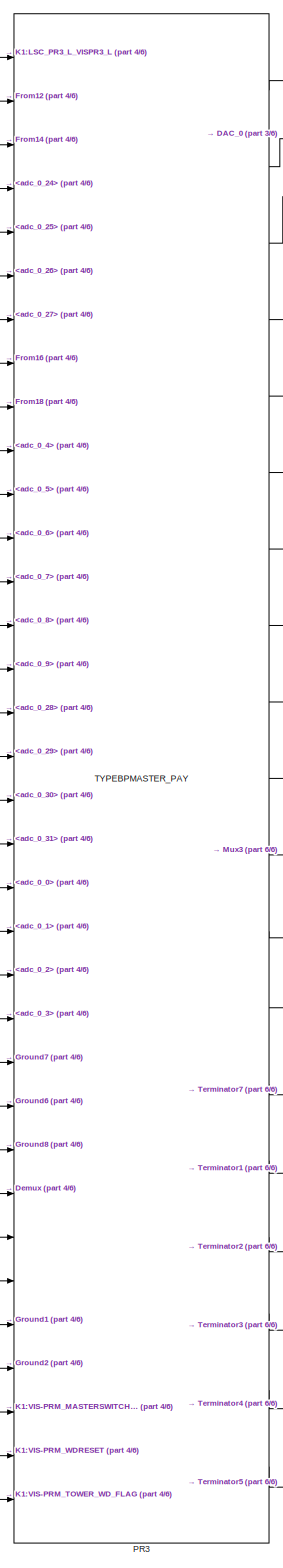
[diagram: root canvas - part 1/6, left side, full height]
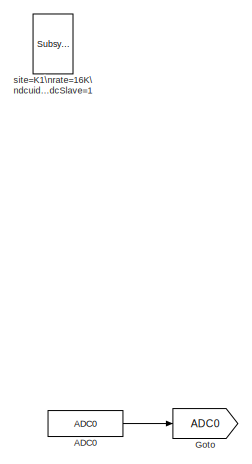
[diagram: root canvas - part 2/6, top left region]
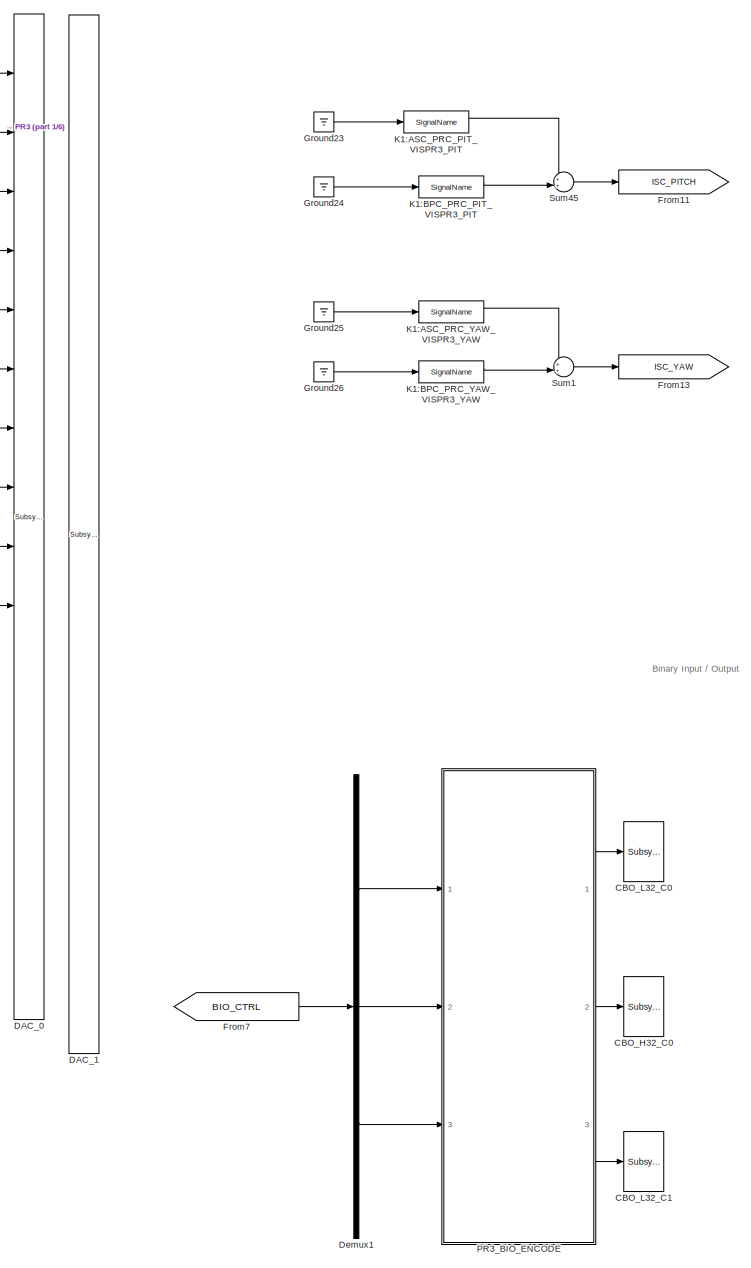
[diagram: root canvas - part 3/6, center side, full height]
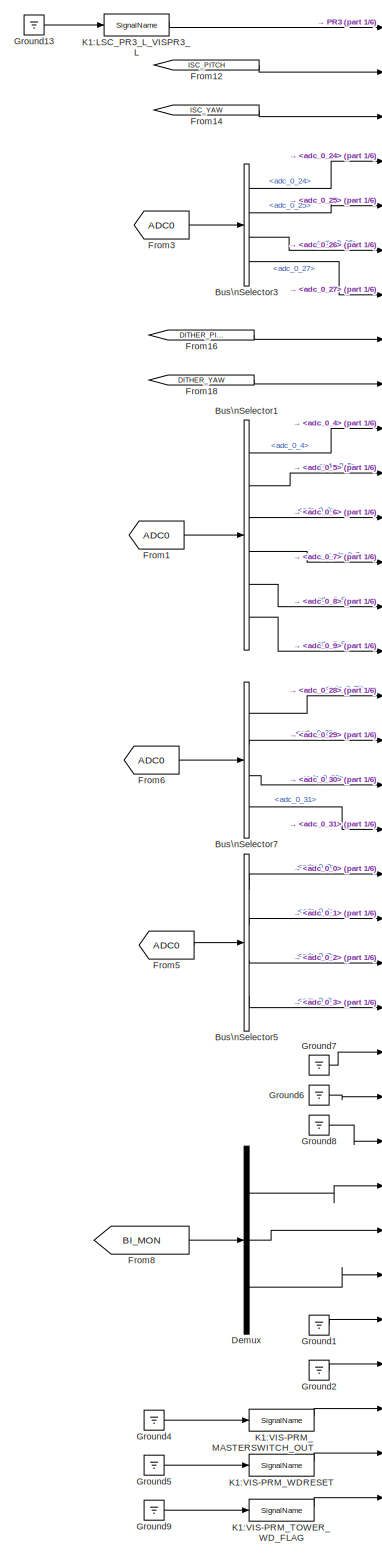
[diagram: root canvas - part 4/6, left side, full height]
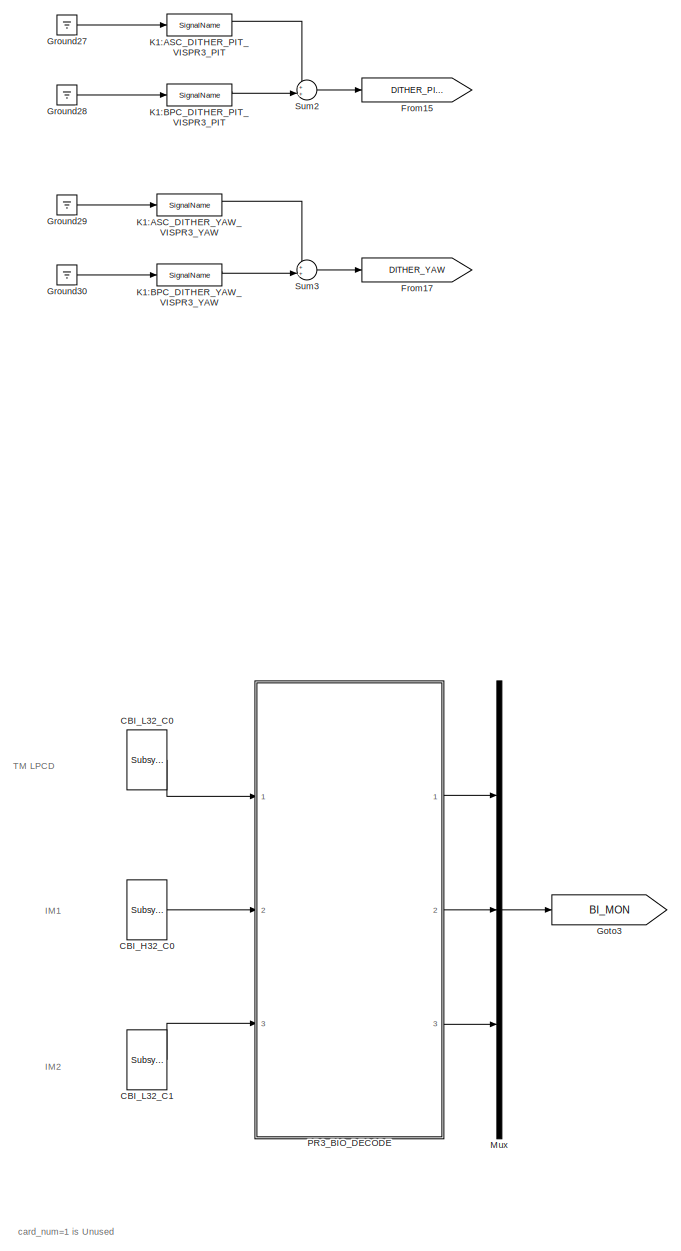
[diagram: root canvas - part 5/6, right side, full height]
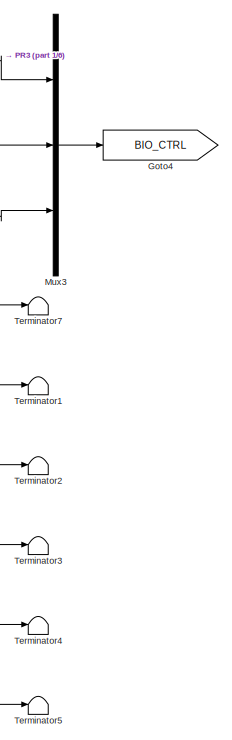
[diagram: root canvas - part 6/6, bottom center region]
MODEL k1vispr3p
KIND model
BLOCK [Reference] ADC0  REF=cdsAdcx0/ADC0
  AttributesFormatString = %<Description>\\n%<Tag>
  Description = type-GSC_16AI64SSA\ncard_num=0
  Ports = [0, 1]
  SID = 271
  SourceBlock = cdsAdcx0/ADC0
  SourceType = SubSystem
  Tag = cdsAdc
BLOCK [BusSelector] Bus\nSelector1
  AttributesFormatString = %<Description>
  Description = ADC Selector
  OutputSignals = adc_0_4,adc_0_5,adc_0_6,adc_0_7,adc_0_8,adc_0_9
  Ports = [1, 6]
  SID = 392
BLOCK [BusSelector] Bus\nSelector3
  AttributesFormatString = %<Description>
  Description = ADC Selector
  OutputSignals = adc_0_24,adc_0_25,adc_0_26,adc_0_27
  Ports = [1, 4]
  SID = 652
BLOCK [BusSelector] Bus\nSelector5
  AttributesFormatString = %<Description>
  Description = ADC Selector
  OutputSignals = adc_0_0,adc_0_1,adc_0_2,adc_0_3
  Ports = [1, 4]
  SID = 650
BLOCK [BusSelector] Bus\nSelector7
  AttributesFormatString = %<Description>
  Description = ADC Selector
  OutputSignals = adc_0_28,adc_0_29,adc_0_30,adc_0_31
  Ports = [1, 4]
  SID = 495
BLOCK [Reference] CBI_H32_C0  REF=cdsCDI64/Subsystem
  AttributesFormatString = %<Tag>\\n%<Description>
  Description = card_num=1
  Ports = [0, 1]
  SID = 996
  SourceBlock = cdsCDI64/Subsystem
  SourceType = SubSystem
  Tag = cdsCDI64
BLOCK [Reference] CBI_L32_C0  REF=cdsCDI64/Subsystem
  AttributesFormatString = %<Tag>\\n%<Description>
  Description = card_num=0
  Ports = [0, 1]
  SID = 1014
  SourceBlock = cdsCDI64/Subsystem
  SourceType = SubSystem
  Tag = cdsCDI64
BLOCK [Reference] CBI_L32_C1  REF=cdsCDI64/Subsystem
  AttributesFormatString = %<Tag>\\n%<Description>
  Description = card_num=2
  Ports = [0, 1]
  SID = 1001
  SourceBlock = cdsCDI64/Subsystem
  SourceType = SubSystem
  Tag = cdsCDI64
BLOCK [Reference] CBO_H32_C0  REF=cdsCDO64/Subsystem
  AttributesFormatString = %<Tag>\\n%<Description>
  Description = card_num=1
  Ports = [1]
  SID = 994
  SourceBlock = cdsCDO64/Subsystem
  SourceType = SubSystem
  Tag = cdsCDO64
BLOCK [Reference] CBO_L32_C0  REF=cdsCDO64/Subsystem
  AttributesFormatString = %<Tag>\\n%<Description>
  Description = card_num=0
  Ports = [1]
  SID = 1013
  SourceBlock = cdsCDO64/Subsystem
  SourceType = SubSystem
  Tag = cdsCDO64
BLOCK [Reference] CBO_L32_C1  REF=cdsCDO64/Subsystem
  AttributesFormatString = %<Tag>\\n%<Description>
  Description = card_num=2
  Ports = [1]
  SID = 999
  SourceBlock = cdsCDO64/Subsystem
  SourceType = SubSystem
  Tag = cdsCDO64
BLOCK [Reference] DAC_0  REF=dac/Subsystem  (lib defined in slx_40ef132df75b, slx_b7657ccccc5b, +4 more)
  AttributesFormatString = %<Description>
  Description = type=GSC_16AO16,\ncard_num=0
  Ports = [16]
  SID = 378
  SourceBlock = dac/Subsystem
  SourceType = SubSystem
BLOCK [Reference] DAC_1  REF=dac/Subsystem  (lib defined in slx_40ef132df75b, slx_b7657ccccc5b, +4 more)
  AttributesFormatString = %<Description>
  Description = type=GSC_16AO16,\ncard_num=1
  Ports = [16]
  SID = 637
  SourceBlock = dac/Subsystem
  SourceType = SubSystem
BLOCK [Demux] Demux
  DisplayOption = bar
  Outputs = 3
  Ports = [1, 3]
  SID = 971
BLOCK [Demux] Demux1
  DisplayOption = bar
  Outputs = 3
  Ports = [1, 3]
  SID = 906
BLOCK [From] From1
  GotoTag = ADC0
  SID = 398
BLOCK [Goto] From11
  GotoTag = ISC_PITCH
  SID = 1047
BLOCK [From] From12
  GotoTag = ISC_PITCH
  SID = 1076
BLOCK [Goto] From13
  GotoTag = ISC_YAW
  SID = 1048
BLOCK [From] From14
  GotoTag = ISC_YAW
  SID = 1077
BLOCK [Goto] From15
  GotoTag = DITHER_PITCH
  SID = 1049
BLOCK [From] From16
  GotoTag = DITHER_PITCH
  SID = 1078
BLOCK [Goto] From17
  GotoTag = DITHER_YAW
  SID = 1050
BLOCK [From] From18
  GotoTag = DITHER_YAW
  SID = 1079
BLOCK [From] From3
  GotoTag = ADC0
  SID = 653
BLOCK [From] From5
  GotoTag = ADC0
  SID = 651
BLOCK [From] From6
  GotoTag = ADC0
  SID = 494
BLOCK [From] From7
  GotoTag = BIO_CTRL
  SID = 907
BLOCK [From] From8
  GotoTag = BI_MON
  SID = 972
BLOCK [Goto] Goto
  GotoTag = ADC0
  SID = 396
BLOCK [Goto] Goto3
  GotoTag = BI_MON
  SID = 908
BLOCK [Goto] Goto4
  GotoTag = BIO_CTRL
  SID = 993
BLOCK [Ground] Ground1
  SID = 1080
BLOCK [Ground] Ground13
  SID = 1046
BLOCK [Ground] Ground2
  SID = 1081
BLOCK [Ground] Ground23
  SID = 1051
BLOCK [Ground] Ground24
  SID = 1052
BLOCK [Ground] Ground25
  SID = 1053
BLOCK [Ground] Ground26
  SID = 1054
BLOCK [Ground] Ground27
  SID = 1055
BLOCK [Ground] Ground28
  SID = 1056
BLOCK [Ground] Ground29
  SID = 1057
BLOCK [Ground] Ground30
  SID = 1058
BLOCK [Ground] Ground4
  SID = 1083
BLOCK [Ground] Ground5
  SID = 1084
BLOCK [Ground] Ground6
  SID = 973
BLOCK [Ground] Ground7
  SID = 974
BLOCK [Ground] Ground8
  SID = 975
BLOCK [Ground] Ground9
  SID = 1085
BLOCK [Reference] K1:ASC_DITHER_PIT_VISPR3_PIT  REF=cdsIPCx/SignalName
  AttributesFormatString = %<Tag>
  Description = Inter-Process Communication via PCI Express network.
  Ports = [1, 2]
  SID = 1074
  SourceBlock = cdsIPCx/SignalName
  SourceType = SubSystem
  Tag = cdsIPCx_PCIE
BLOCK [Reference] K1:ASC_DITHER_YAW_VISPR3_YAW  REF=cdsIPCx/SignalName
  AttributesFormatString = %<Tag>
  Description = Inter-Process Communication via PCI Express network.
  Ports = [1, 2]
  SID = 1075
  SourceBlock = cdsIPCx/SignalName
  SourceType = SubSystem
  Tag = cdsIPCx_PCIE
BLOCK [Reference] K1:ASC_PRC_PIT_VISPR3_PIT  REF=cdsIPCx/SignalName
  AttributesFormatString = %<Tag>
  Description = Inter-Process Communication via PCI Express network.
  Ports = [1, 2]
  SID = 1072
  SourceBlock = cdsIPCx/SignalName
  SourceType = SubSystem
  Tag = cdsIPCx_PCIE
BLOCK [Reference] K1:ASC_PRC_YAW_VISPR3_YAW  REF=cdsIPCx/SignalName
  AttributesFormatString = %<Tag>
  Description = Inter-Process Communication via PCI Express network.
  Ports = [1, 2]
  SID = 1073
  SourceBlock = cdsIPCx/SignalName
  SourceType = SubSystem
  Tag = cdsIPCx_PCIE
BLOCK [Reference] K1:BPC_DITHER_PIT_VISPR3_PIT  REF=cdsIPCx/SignalName
  AttributesFormatString = %<Tag>
  Description = Inter-Process Communication via PCI Express network.
  Ports = [1, 2]
  SID = 1063
  SourceBlock = cdsIPCx/SignalName
  SourceType = SubSystem
  Tag = cdsIPCx_PCIE
BLOCK [Reference] K1:BPC_DITHER_YAW_VISPR3_YAW  REF=cdsIPCx/SignalName
  AttributesFormatString = %<Tag>
  Description = Inter-Process Communication via PCI Express network.
  Ports = [1, 2]
  SID = 1064
  SourceBlock = cdsIPCx/SignalName
  SourceType = SubSystem
  Tag = cdsIPCx_PCIE
BLOCK [Reference] K1:BPC_PRC_PIT_VISPR3_PIT  REF=cdsIPCx/SignalName
  AttributesFormatString = %<Tag>
  Description = Inter-Process Communication via PCI Express network.
  Ports = [1, 2]
  SID = 1065
  SourceBlock = cdsIPCx/SignalName
  SourceType = SubSystem
  Tag = cdsIPCx_PCIE
BLOCK [Reference] K1:BPC_PRC_YAW_VISPR3_YAW  REF=cdsIPCx/SignalName
  AttributesFormatString = %<Tag>
  Description = Inter-Process Communication via PCI Express network.
  Ports = [1, 2]
  SID = 1066
  SourceBlock = cdsIPCx/SignalName
  SourceType = SubSystem
  Tag = cdsIPCx_PCIE
BLOCK [Reference] K1:LSC_PR3_L_VISPR3_L  REF=cdsIPCx/SignalName
  AttributesFormatString = %<Tag>
  Description = Inter-Process Communication via PCI Express network.
  Ports = [1, 2]
  SID = 1045
  SourceBlock = cdsIPCx/SignalName
  SourceType = SubSystem
  Tag = cdsIPCx_PCIE
BLOCK [Reference] K1:VIS-PRM_MASTERSWITCH_OUT  REF=cdsIPCx/SignalName
  AttributesFormatString = %<Tag>
  Description = Inter-Process Communication via Shared memory.
  Ports = [1, 2]
  SID = 1086
  SourceBlock = cdsIPCx/SignalName
  SourceType = SubSystem
  Tag = cdsIPCx_SHMEM
BLOCK [Reference] K1:VIS-PRM_TOWER_WD_FLAG  REF=cdsIPCx/SignalName
  AttributesFormatString = %<Tag>
  Description = Inter-Process Communication via Shared memory.
  Ports = [1, 2]
  SID = 1087
  SourceBlock = cdsIPCx/SignalName
  SourceType = SubSystem
  Tag = cdsIPCx_SHMEM
BLOCK [Reference] K1:VIS-PRM_WDRESET  REF=cdsIPCx/SignalName
  AttributesFormatString = %<Tag>
  Description = Inter-Process Communication via Shared memory.
  Ports = [1, 2]
  SID = 1088
  SourceBlock = cdsIPCx/SignalName
  SourceType = SubSystem
  Tag = cdsIPCx_SHMEM
BLOCK [Mux] Mux
  DisplayOption = bar
  Inputs = 3
  Ports = [3, 1]
  SID = 909
BLOCK [Mux] Mux3
  DisplayOption = bar
  Inputs = 3
  Ports = [3, 1]
  SID = 992
BLOCK [Reference] PR3  REF=TYPEBP_MASTER/TYPEBPMASTER_PAY
  AttributesFormatString = %<Description>
  Description = TYPEBP MASTER
  Ports = [34, 19]
  SID = 1082
  SourceBlock = TYPEBP_MASTER/TYPEBPMASTER_PAY
  SourceType = SubSystem
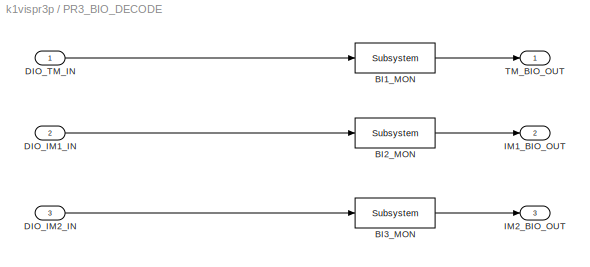
BLOCK [SubSystem] PR3_BIO_DECODE
  Ports = [3, 3]
  RequestExecContextInheritance = off
  SID = 654
  Variant = off
BLOCK [Reference] PR3_BIO_DECODE/BI1_MON  REF=cdsEpicsOut/Subsystem
  AttributesFormatString = %<Tag>
  Description = Purpose:                                          \nOutput a FE signal to an EPICS channel.           \n                                                  \nOperation:                                        \nTakes input value and passes it to EPICS record.  \n                                                  \nUsage:                                            \nName the part with the desired EPICS...<+14ch>  <repeated x6 — deduplicated; at blocks: BI1_MON, BI2_MON, BI3_MON, DIO_0_OUT, DIO_1_OUT, DIO_2_OUT>
  Ports = [1, 1]
  SID = 660
  SourceBlock = cdsEpicsOut/Subsystem
  SourceType = SubSystem
  Tag = cdsEpicsOutput
BLOCK [Reference] PR3_BIO_DECODE/BI2_MON  REF=cdsEpicsOut/Subsystem
  AttributesFormatString = %<Tag>
  Ports = [1, 1]
  SID = 661
  SourceBlock = cdsEpicsOut/Subsystem
  SourceType = SubSystem
  Tag = cdsEpicsOutput
BLOCK [Reference] PR3_BIO_DECODE/BI3_MON  REF=cdsEpicsOut/Subsystem
  AttributesFormatString = %<Tag>
  Ports = [1, 1]
  SID = 662
  SourceBlock = cdsEpicsOut/Subsystem
  SourceType = SubSystem
  Tag = cdsEpicsOutput
BLOCK [Inport] PR3_BIO_DECODE/DIO_IM1_IN
  IconDisplay = Port number
  Port = 2
  SID = 656
BLOCK [Inport] PR3_BIO_DECODE/DIO_IM2_IN
  IconDisplay = Port number
  Port = 3
  SID = 657
BLOCK [Inport] PR3_BIO_DECODE/DIO_TM_IN
  IconDisplay = Port number
  SID = 655
BLOCK [Outport] PR3_BIO_DECODE/IM1_BIO_OUT
  IconDisplay = Port number
  Port = 2
  SID = 666
BLOCK [Outport] PR3_BIO_DECODE/IM2_BIO_OUT
  IconDisplay = Port number
  Port = 3
  SID = 667
BLOCK [Outport] PR3_BIO_DECODE/TM_BIO_OUT
  IconDisplay = Port number
  SID = 665
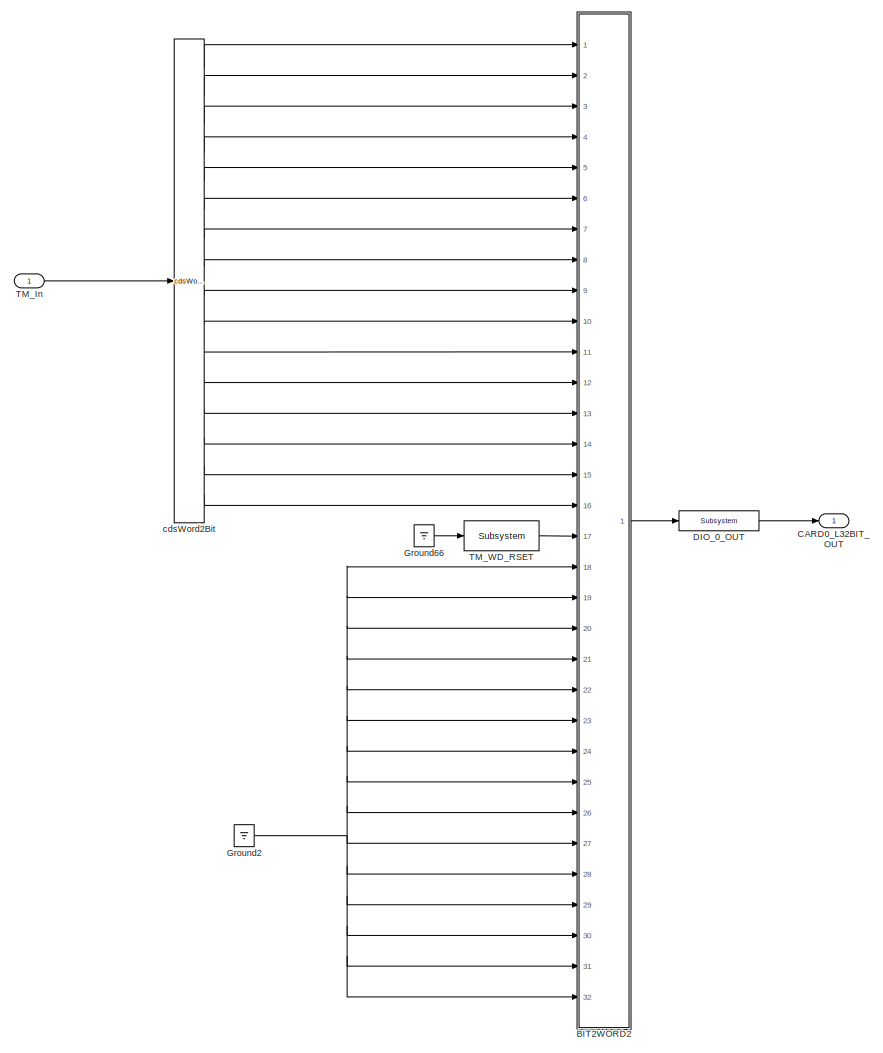
[diagram: PR3_BIO_ENCODE - part 1/3, top left region]
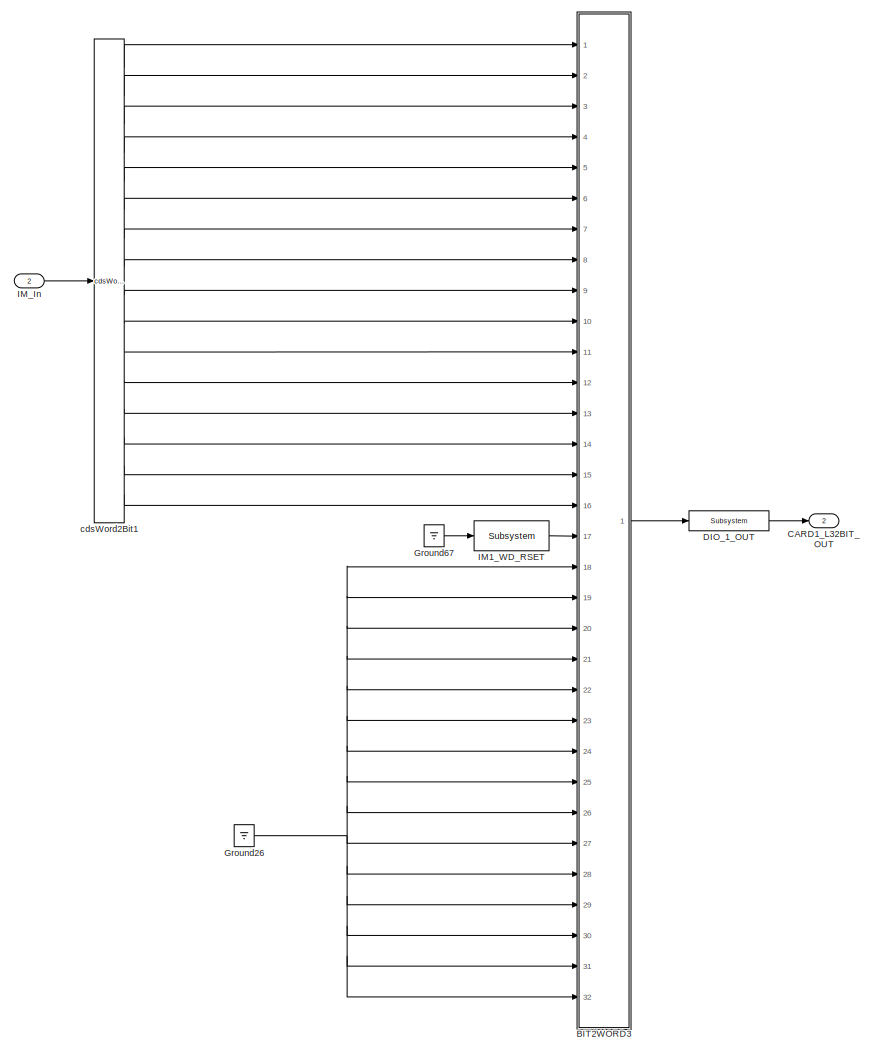
[diagram: PR3_BIO_ENCODE - part 2/3, top right region]
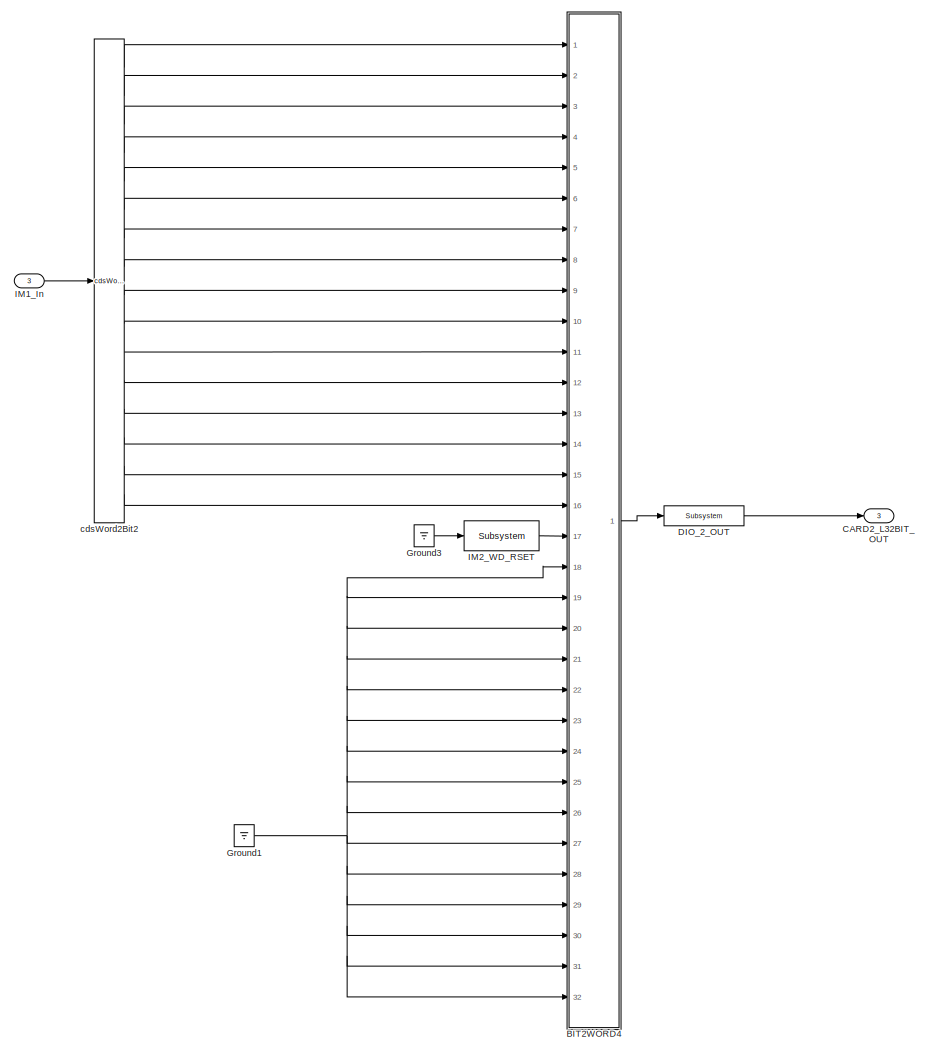
[diagram: PR3_BIO_ENCODE - part 3/3, bottom left region]
BLOCK [SubSystem] PR3_BIO_ENCODE
  Ports = [3, 3]
  RequestExecContextInheritance = off
  SID = 670
  Variant = off
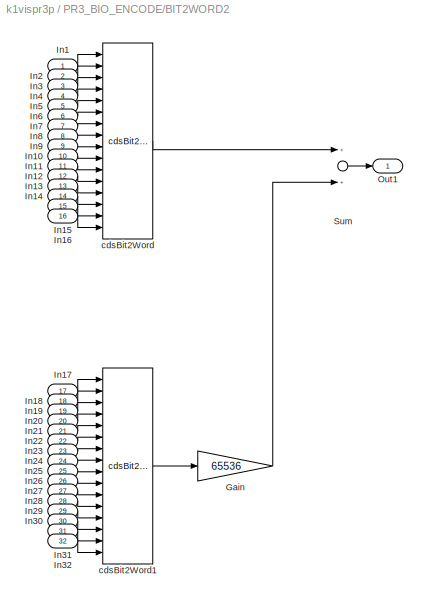
BLOCK [SubSystem] PR3_BIO_ENCODE/BIT2WORD2
  Ports = [32, 1]
  RequestExecContextInheritance = off
  SID = 714
  Variant = off
BLOCK [Gain] PR3_BIO_ENCODE/BIT2WORD2/Gain
  Gain = 65536
  OutDataTypeStr = Inherit: Inherit via internal rule
  ParamDataTypeStr = Inherit: Inherit via internal rule
  SID = 747
  SaturateOnIntegerOverflow = off
BLOCK [Inport] PR3_BIO_ENCODE/BIT2WORD2/In1
  IconDisplay = Port number
  SID = 715
BLOCK [Inport] PR3_BIO_ENCODE/BIT2WORD2/In10
  IconDisplay = Port number
  Port = 10
  SID = 724
BLOCK [Inport] PR3_BIO_ENCODE/BIT2WORD2/In11
  IconDisplay = Port number
  Port = 11
  SID = 725
BLOCK [Inport] PR3_BIO_ENCODE/BIT2WORD2/In12
  IconDisplay = Port number
  Port = 12
  SID = 726
BLOCK [Inport] PR3_BIO_ENCODE/BIT2WORD2/In13
  IconDisplay = Port number
  Port = 13
  SID = 727
BLOCK [Inport] PR3_BIO_ENCODE/BIT2WORD2/In14
  IconDisplay = Port number
  Port = 14
  SID = 728
BLOCK [Inport] PR3_BIO_ENCODE/BIT2WORD2/In15
  IconDisplay = Port number
  Port = 15
  SID = 729
BLOCK [Inport] PR3_BIO_ENCODE/BIT2WORD2/In16
  IconDisplay = Port number
  Port = 16
  SID = 730
BLOCK [Inport] PR3_BIO_ENCODE/BIT2WORD2/In17
  IconDisplay = Port number
  Port = 17
  SID = 731
BLOCK [Inport] PR3_BIO_ENCODE/BIT2WORD2/In18
  IconDisplay = Port number
  Port = 18
  SID = 732
BLOCK [Inport] PR3_BIO_ENCODE/BIT2WORD2/In19
  IconDisplay = Port number
  Port = 19
  SID = 733
BLOCK [Inport] PR3_BIO_ENCODE/BIT2WORD2/In2
  IconDisplay = Port number
  Port = 2
  SID = 716
BLOCK [Inport] PR3_BIO_ENCODE/BIT2WORD2/In20
  IconDisplay = Port number
  Port = 20
  SID = 734
BLOCK [Inport] PR3_BIO_ENCODE/BIT2WORD2/In21
  IconDisplay = Port number
  Port = 21
  SID = 735
BLOCK [Inport] PR3_BIO_ENCODE/BIT2WORD2/In22
  IconDisplay = Port number
  Port = 22
  SID = 736
BLOCK [Inport] PR3_BIO_ENCODE/BIT2WORD2/In23
  IconDisplay = Port number
  Port = 23
  SID = 737
BLOCK [Inport] PR3_BIO_ENCODE/BIT2WORD2/In24
  IconDisplay = Port number
  Port = 24
  SID = 738
BLOCK [Inport] PR3_BIO_ENCODE/BIT2WORD2/In25
  IconDisplay = Port number
  Port = 25
  SID = 739
BLOCK [Inport] PR3_BIO_ENCODE/BIT2WORD2/In26
  IconDisplay = Port number
  Port = 26
  SID = 740
BLOCK [Inport] PR3_BIO_ENCODE/BIT2WORD2/In27
  IconDisplay = Port number
  Port = 27
  SID = 741
BLOCK [Inport] PR3_BIO_ENCODE/BIT2WORD2/In28
  IconDisplay = Port number
  Port = 28
  SID = 742
BLOCK [Inport] PR3_BIO_ENCODE/BIT2WORD2/In29
  IconDisplay = Port number
  Port = 29
  SID = 743
BLOCK [Inport] PR3_BIO_ENCODE/BIT2WORD2/In3
  IconDisplay = Port number
  Port = 3
  SID = 717
BLOCK [Inport] PR3_BIO_ENCODE/BIT2WORD2/In30
  IconDisplay = Port number
  Port = 30
  SID = 744
BLOCK [Inport] PR3_BIO_ENCODE/BIT2WORD2/In31
  IconDisplay = Port number
  Port = 31
  SID = 745
BLOCK [Inport] PR3_BIO_ENCODE/BIT2WORD2/In32
  IconDisplay = Port number
  Port = 32
  SID = 746
BLOCK [Inport] PR3_BIO_ENCODE/BIT2WORD2/In4
  IconDisplay = Port number
  Port = 4
  SID = 718
BLOCK [Inport] PR3_BIO_ENCODE/BIT2WORD2/In5
  IconDisplay = Port number
  Port = 5
  SID = 719
BLOCK [Inport] PR3_BIO_ENCODE/BIT2WORD2/In6
  IconDisplay = Port number
  Port = 6
  SID = 720
BLOCK [Inport] PR3_BIO_ENCODE/BIT2WORD2/In7
  IconDisplay = Port number
  Port = 7
  SID = 721
BLOCK [Inport] PR3_BIO_ENCODE/BIT2WORD2/In8
  IconDisplay = Port number
  Port = 8
  SID = 722
BLOCK [Inport] PR3_BIO_ENCODE/BIT2WORD2/In9
  IconDisplay = Port number
  Port = 9
  SID = 723
BLOCK [Outport] PR3_BIO_ENCODE/BIT2WORD2/Out1
  IconDisplay = Port number
  SID = 751
BLOCK [Sum] PR3_BIO_ENCODE/BIT2WORD2/Sum
  InputSameDT = off
  OutDataTypeStr = Inherit: Inherit via internal rule
  Ports = [2, 1]
  SID = 748
  SaturateOnIntegerOverflow = off
BLOCK [Reference] PR3_BIO_ENCODE/BIT2WORD2/cdsBit2Word  REF=cdsBit2Word/cdsBit2Word
  AttributesFormatString = %<Tag>
  Description = Forms single 16 bit integer from 16 0/1 inputs.
  Ports = [16, 1]
  SID = 749
  SourceBlock = cdsBit2Word/cdsBit2Word
  SourceType = SubSystem
  Tag = cdsBit2Word
BLOCK [Reference] PR3_BIO_ENCODE/BIT2WORD2/cdsBit2Word1  REF=cdsBit2Word/cdsBit2Word
  AttributesFormatString = %<Tag>
  Description = Forms single 16 bit integer from 16 0/1 inputs.
  Ports = [16, 1]
  SID = 750
  SourceBlock = cdsBit2Word/cdsBit2Word
  SourceType = SubSystem
  Tag = cdsBit2Word
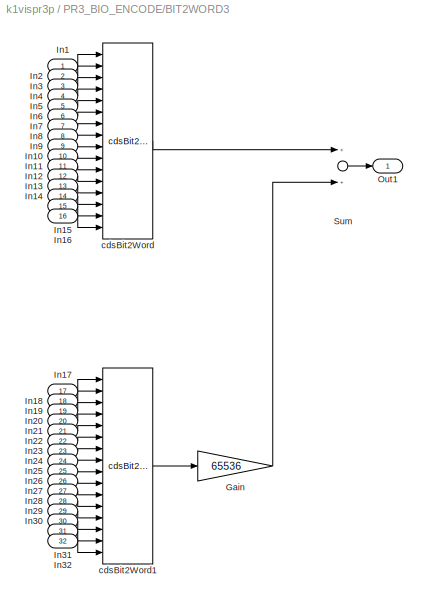
BLOCK [SubSystem] PR3_BIO_ENCODE/BIT2WORD3
  Ports = [32, 1]
  RequestExecContextInheritance = off
  SID = 752
  Variant = off
BLOCK [Gain] PR3_BIO_ENCODE/BIT2WORD3/Gain
  Gain = 65536
  OutDataTypeStr = Inherit: Inherit via internal rule
  ParamDataTypeStr = Inherit: Inherit via internal rule
  SID = 785
  SaturateOnIntegerOverflow = off
BLOCK [Inport] PR3_BIO_ENCODE/BIT2WORD3/In1
  IconDisplay = Port number
  SID = 753
BLOCK [Inport] PR3_BIO_ENCODE/BIT2WORD3/In10
  IconDisplay = Port number
  Port = 10
  SID = 762
BLOCK [Inport] PR3_BIO_ENCODE/BIT2WORD3/In11
  IconDisplay = Port number
  Port = 11
  SID = 763
BLOCK [Inport] PR3_BIO_ENCODE/BIT2WORD3/In12
  IconDisplay = Port number
  Port = 12
  SID = 764
BLOCK [Inport] PR3_BIO_ENCODE/BIT2WORD3/In13
  IconDisplay = Port number
  Port = 13
  SID = 765
BLOCK [Inport] PR3_BIO_ENCODE/BIT2WORD3/In14
  IconDisplay = Port number
  Port = 14
  SID = 766
BLOCK [Inport] PR3_BIO_ENCODE/BIT2WORD3/In15
  IconDisplay = Port number
  Port = 15
  SID = 767
BLOCK [Inport] PR3_BIO_ENCODE/BIT2WORD3/In16
  IconDisplay = Port number
  Port = 16
  SID = 768
BLOCK [Inport] PR3_BIO_ENCODE/BIT2WORD3/In17
  IconDisplay = Port number
  Port = 17
  SID = 769
BLOCK [Inport] PR3_BIO_ENCODE/BIT2WORD3/In18
  IconDisplay = Port number
  Port = 18
  SID = 770
BLOCK [Inport] PR3_BIO_ENCODE/BIT2WORD3/In19
  IconDisplay = Port number
  Port = 19
  SID = 771
BLOCK [Inport] PR3_BIO_ENCODE/BIT2WORD3/In2
  IconDisplay = Port number
  Port = 2
  SID = 754
BLOCK [Inport] PR3_BIO_ENCODE/BIT2WORD3/In20
  IconDisplay = Port number
  Port = 20
  SID = 772
BLOCK [Inport] PR3_BIO_ENCODE/BIT2WORD3/In21
  IconDisplay = Port number
  Port = 21
  SID = 773
BLOCK [Inport] PR3_BIO_ENCODE/BIT2WORD3/In22
  IconDisplay = Port number
  Port = 22
  SID = 774
BLOCK [Inport] PR3_BIO_ENCODE/BIT2WORD3/In23
  IconDisplay = Port number
  Port = 23
  SID = 775
BLOCK [Inport] PR3_BIO_ENCODE/BIT2WORD3/In24
  IconDisplay = Port number
  Port = 24
  SID = 776
BLOCK [Inport] PR3_BIO_ENCODE/BIT2WORD3/In25
  IconDisplay = Port number
  Port = 25
  SID = 777
BLOCK [Inport] PR3_BIO_ENCODE/BIT2WORD3/In26
  IconDisplay = Port number
  Port = 26
  SID = 778
BLOCK [Inport] PR3_BIO_ENCODE/BIT2WORD3/In27
  IconDisplay = Port number
  Port = 27
  SID = 779
BLOCK [Inport] PR3_BIO_ENCODE/BIT2WORD3/In28
  IconDisplay = Port number
  Port = 28
  SID = 780
BLOCK [Inport] PR3_BIO_ENCODE/BIT2WORD3/In29
  IconDisplay = Port number
  Port = 29
  SID = 781
BLOCK [Inport] PR3_BIO_ENCODE/BIT2WORD3/In3
  IconDisplay = Port number
  Port = 3
  SID = 755
BLOCK [Inport] PR3_BIO_ENCODE/BIT2WORD3/In30
  IconDisplay = Port number
  Port = 30
  SID = 782
BLOCK [Inport] PR3_BIO_ENCODE/BIT2WORD3/In31
  IconDisplay = Port number
  Port = 31
  SID = 783
BLOCK [Inport] PR3_BIO_ENCODE/BIT2WORD3/In32
  IconDisplay = Port number
  Port = 32
  SID = 784
BLOCK [Inport] PR3_BIO_ENCODE/BIT2WORD3/In4
  IconDisplay = Port number
  Port = 4
  SID = 756
BLOCK [Inport] PR3_BIO_ENCODE/BIT2WORD3/In5
  IconDisplay = Port number
  Port = 5
  SID = 757
BLOCK [Inport] PR3_BIO_ENCODE/BIT2WORD3/In6
  IconDisplay = Port number
  Port = 6
  SID = 758
BLOCK [Inport] PR3_BIO_ENCODE/BIT2WORD3/In7
  IconDisplay = Port number
  Port = 7
  SID = 759
BLOCK [Inport] PR3_BIO_ENCODE/BIT2WORD3/In8
  IconDisplay = Port number
  Port = 8
  SID = 760
BLOCK [Inport] PR3_BIO_ENCODE/BIT2WORD3/In9
  IconDisplay = Port number
  Port = 9
  SID = 761
BLOCK [Outport] PR3_BIO_ENCODE/BIT2WORD3/Out1
  IconDisplay = Port number
  SID = 789
BLOCK [Sum] PR3_BIO_ENCODE/BIT2WORD3/Sum
  InputSameDT = off
  OutDataTypeStr = Inherit: Inherit via internal rule
  Ports = [2, 1]
  SID = 786
  SaturateOnIntegerOverflow = off
BLOCK [Reference] PR3_BIO_ENCODE/BIT2WORD3/cdsBit2Word  REF=cdsBit2Word/cdsBit2Word
  AttributesFormatString = %<Tag>
  Description = Forms single 16 bit integer from 16 0/1 inputs.
  Ports = [16, 1]
  SID = 787
  SourceBlock = cdsBit2Word/cdsBit2Word
  SourceType = SubSystem
  Tag = cdsBit2Word
BLOCK [Reference] PR3_BIO_ENCODE/BIT2WORD3/cdsBit2Word1  REF=cdsBit2Word/cdsBit2Word
  AttributesFormatString = %<Tag>
  Description = Forms single 16 bit integer from 16 0/1 inputs.
  Ports = [16, 1]
  SID = 788
  SourceBlock = cdsBit2Word/cdsBit2Word
  SourceType = SubSystem
  Tag = cdsBit2Word
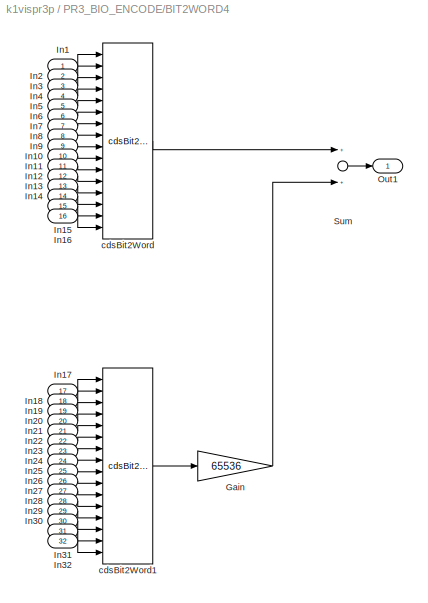
BLOCK [SubSystem] PR3_BIO_ENCODE/BIT2WORD4
  Ports = [32, 1]
  RequestExecContextInheritance = off
  SID = 790
  Variant = off
BLOCK [Gain] PR3_BIO_ENCODE/BIT2WORD4/Gain
  Gain = 65536
  OutDataTypeStr = Inherit: Inherit via internal rule
  ParamDataTypeStr = Inherit: Inherit via internal rule
  SID = 823
  SaturateOnIntegerOverflow = off
BLOCK [Inport] PR3_BIO_ENCODE/BIT2WORD4/In1
  IconDisplay = Port number
  SID = 791
BLOCK [Inport] PR3_BIO_ENCODE/BIT2WORD4/In10
  IconDisplay = Port number
  Port = 10
  SID = 800
BLOCK [Inport] PR3_BIO_ENCODE/BIT2WORD4/In11
  IconDisplay = Port number
  Port = 11
  SID = 801
BLOCK [Inport] PR3_BIO_ENCODE/BIT2WORD4/In12
  IconDisplay = Port number
  Port = 12
  SID = 802
BLOCK [Inport] PR3_BIO_ENCODE/BIT2WORD4/In13
  IconDisplay = Port number
  Port = 13
  SID = 803
BLOCK [Inport] PR3_BIO_ENCODE/BIT2WORD4/In14
  IconDisplay = Port number
  Port = 14
  SID = 804
BLOCK [Inport] PR3_BIO_ENCODE/BIT2WORD4/In15
  IconDisplay = Port number
  Port = 15
  SID = 805
BLOCK [Inport] PR3_BIO_ENCODE/BIT2WORD4/In16
  IconDisplay = Port number
  Port = 16
  SID = 806
BLOCK [Inport] PR3_BIO_ENCODE/BIT2WORD4/In17
  IconDisplay = Port number
  Port = 17
  SID = 807
BLOCK [Inport] PR3_BIO_ENCODE/BIT2WORD4/In18
  IconDisplay = Port number
  Port = 18
  SID = 808
BLOCK [Inport] PR3_BIO_ENCODE/BIT2WORD4/In19
  IconDisplay = Port number
  Port = 19
  SID = 809
BLOCK [Inport] PR3_BIO_ENCODE/BIT2WORD4/In2
  IconDisplay = Port number
  Port = 2
  SID = 792
BLOCK [Inport] PR3_BIO_ENCODE/BIT2WORD4/In20
  IconDisplay = Port number
  Port = 20
  SID = 810
BLOCK [Inport] PR3_BIO_ENCODE/BIT2WORD4/In21
  IconDisplay = Port number
  Port = 21
  SID = 811
BLOCK [Inport] PR3_BIO_ENCODE/BIT2WORD4/In22
  IconDisplay = Port number
  Port = 22
  SID = 812
BLOCK [Inport] PR3_BIO_ENCODE/BIT2WORD4/In23
  IconDisplay = Port number
  Port = 23
  SID = 813
BLOCK [Inport] PR3_BIO_ENCODE/BIT2WORD4/In24
  IconDisplay = Port number
  Port = 24
  SID = 814
BLOCK [Inport] PR3_BIO_ENCODE/BIT2WORD4/In25
  IconDisplay = Port number
  Port = 25
  SID = 815
BLOCK [Inport] PR3_BIO_ENCODE/BIT2WORD4/In26
  IconDisplay = Port number
  Port = 26
  SID = 816
BLOCK [Inport] PR3_BIO_ENCODE/BIT2WORD4/In27
  IconDisplay = Port number
  Port = 27
  SID = 817
BLOCK [Inport] PR3_BIO_ENCODE/BIT2WORD4/In28
  IconDisplay = Port number
  Port = 28
  SID = 818
BLOCK [Inport] PR3_BIO_ENCODE/BIT2WORD4/In29
  IconDisplay = Port number
  Port = 29
  SID = 819
BLOCK [Inport] PR3_BIO_ENCODE/BIT2WORD4/In3
  IconDisplay = Port number
  Port = 3
  SID = 793
BLOCK [Inport] PR3_BIO_ENCODE/BIT2WORD4/In30
  IconDisplay = Port number
  Port = 30
  SID = 820
BLOCK [Inport] PR3_BIO_ENCODE/BIT2WORD4/In31
  IconDisplay = Port number
  Port = 31
  SID = 821
BLOCK [Inport] PR3_BIO_ENCODE/BIT2WORD4/In32
  IconDisplay = Port number
  Port = 32
  SID = 822
BLOCK [Inport] PR3_BIO_ENCODE/BIT2WORD4/In4
  IconDisplay = Port number
  Port = 4
  SID = 794
BLOCK [Inport] PR3_BIO_ENCODE/BIT2WORD4/In5
  IconDisplay = Port number
  Port = 5
  SID = 795
BLOCK [Inport] PR3_BIO_ENCODE/BIT2WORD4/In6
  IconDisplay = Port number
  Port = 6
  SID = 796
BLOCK [Inport] PR3_BIO_ENCODE/BIT2WORD4/In7
  IconDisplay = Port number
  Port = 7
  SID = 797
BLOCK [Inport] PR3_BIO_ENCODE/BIT2WORD4/In8
  IconDisplay = Port number
  Port = 8
  SID = 798
BLOCK [Inport] PR3_BIO_ENCODE/BIT2WORD4/In9
  IconDisplay = Port number
  Port = 9
  SID = 799
BLOCK [Outport] PR3_BIO_ENCODE/BIT2WORD4/Out1
  IconDisplay = Port number
  SID = 827
BLOCK [Sum] PR3_BIO_ENCODE/BIT2WORD4/Sum
  InputSameDT = off
  OutDataTypeStr = Inherit: Inherit via internal rule
  Ports = [2, 1]
  SID = 824
  SaturateOnIntegerOverflow = off
BLOCK [Reference] PR3_BIO_ENCODE/BIT2WORD4/cdsBit2Word  REF=cdsBit2Word/cdsBit2Word
  AttributesFormatString = %<Tag>
  Description = Forms single 16 bit integer from 16 0/1 inputs.
  Ports = [16, 1]
  SID = 825
  SourceBlock = cdsBit2Word/cdsBit2Word
  SourceType = SubSystem
  Tag = cdsBit2Word
BLOCK [Reference] PR3_BIO_ENCODE/BIT2WORD4/cdsBit2Word1  REF=cdsBit2Word/cdsBit2Word
  AttributesFormatString = %<Tag>
  Description = Forms single 16 bit integer from 16 0/1 inputs.
  Ports = [16, 1]
  SID = 826
  SourceBlock = cdsBit2Word/cdsBit2Word
  SourceType = SubSystem
  Tag = cdsBit2Word
BLOCK [Outport] PR3_BIO_ENCODE/CARD0_L32BIT_OUT
  IconDisplay = Port number
  SID = 891
BLOCK [Outport] PR3_BIO_ENCODE/CARD1_L32BIT_OUT
  IconDisplay = Port number
  Port = 2
  SID = 892
BLOCK [Outport] PR3_BIO_ENCODE/CARD2_L32BIT_OUT
  IconDisplay = Port number
  Port = 3
  SID = 893
BLOCK [Reference] PR3_BIO_ENCODE/DIO_0_OUT  REF=cdsEpicsOut/Subsystem
  AttributesFormatString = %<Tag>
  Ports = [1, 1]
  SID = 866
  SourceBlock = cdsEpicsOut/Subsystem
  SourceType = SubSystem
  Tag = cdsEpicsOutput
BLOCK [Reference] PR3_BIO_ENCODE/DIO_1_OUT  REF=cdsEpicsOut/Subsystem
  AttributesFormatString = %<Tag>
  Ports = [1, 1]
  SID = 867
  SourceBlock = cdsEpicsOut/Subsystem
  SourceType = SubSystem
  Tag = cdsEpicsOutput
BLOCK [Reference] PR3_BIO_ENCODE/DIO_2_OUT  REF=cdsEpicsOut/Subsystem
  AttributesFormatString = %<Tag>
  Ports = [1, 1]
  SID = 868
  SourceBlock = cdsEpicsOut/Subsystem
  SourceType = SubSystem
  Tag = cdsEpicsOutput
BLOCK [Ground] PR3_BIO_ENCODE/Ground1
  SID = 872
BLOCK [Ground] PR3_BIO_ENCODE/Ground2
  SID = 873
BLOCK [Ground] PR3_BIO_ENCODE/Ground26
  SID = 874
BLOCK [Ground] PR3_BIO_ENCODE/Ground3
  SID = 875
BLOCK [Ground] PR3_BIO_ENCODE/Ground66
  SID = 879
BLOCK [Ground] PR3_BIO_ENCODE/Ground67
  SID = 880
BLOCK [Inport] PR3_BIO_ENCODE/IM1_In
  IconDisplay = Port number
  Port = 3
  SID = 673
BLOCK [Reference] PR3_BIO_ENCODE/IM1_WD_RSET  REF=cdsEpicsBinIn/Subsystem
  AttributesFormatString = %<Tag>
  Description = Purpose:                                                                            \nCreate an EPICS binary (0 or 1) input channel to the FE realtime controls.          \n                                                                                    \nOperation:                                                                          \nOutputs value from an EPICS ai record. Value is binary i...<+252ch>  <repeated x3 — deduplicated; at blocks: IM1_WD_RSET, IM2_WD_RSET, TM_WD_RSET>
  Ports = [1, 1]
  SID = 882
  SourceBlock = cdsEpicsBinIn/Subsystem
  SourceType = SubSystem
  Tag = cdsEpicsBinIn
BLOCK [Reference] PR3_BIO_ENCODE/IM2_WD_RSET  REF=cdsEpicsBinIn/Subsystem
  AttributesFormatString = %<Tag>
  Ports = [1, 1]
  SID = 883
  SourceBlock = cdsEpicsBinIn/Subsystem
  SourceType = SubSystem
  Tag = cdsEpicsBinIn
BLOCK [Inport] PR3_BIO_ENCODE/IM_In
  IconDisplay = Port number
  Port = 2
  SID = 672
BLOCK [Inport] PR3_BIO_ENCODE/TM_In
  IconDisplay = Port number
  SID = 671
BLOCK [Reference] PR3_BIO_ENCODE/TM_WD_RSET  REF=cdsEpicsBinIn/Subsystem
  AttributesFormatString = %<Tag>
  Ports = [1, 1]
  SID = 885
  SourceBlock = cdsEpicsBinIn/Subsystem
  SourceType = SubSystem
  Tag = cdsEpicsBinIn
BLOCK [Reference] PR3_BIO_ENCODE/cdsWord2Bit  REF=cdsWord2Bit/cdsWord2Bit
  AttributesFormatString = cdsWord2Bit
  Description = Generate 16 0/1 outputs from single 16-bit integer input
  Ports = [1, 16]
  SID = 886
  SourceBlock = cdsWord2Bit/cdsWord2Bit
  SourceType = SubSystem
  Tag = cdsWord2Bit
BLOCK [Reference] PR3_BIO_ENCODE/cdsWord2Bit1  REF=cdsWord2Bit/cdsWord2Bit
  AttributesFormatString = cdsWord2Bit
  Description = Generate 16 0/1 outputs from single 16-bit integer input
  Ports = [1, 16]
  SID = 887
  SourceBlock = cdsWord2Bit/cdsWord2Bit
  SourceType = SubSystem
  Tag = cdsWord2Bit
BLOCK [Reference] PR3_BIO_ENCODE/cdsWord2Bit2  REF=cdsWord2Bit/cdsWord2Bit
  AttributesFormatString = cdsWord2Bit
  Description = Generate 16 0/1 outputs from single 16-bit integer input
  Ports = [1, 16]
  SID = 888
  SourceBlock = cdsWord2Bit/cdsWord2Bit
  SourceType = SubSystem
  Tag = cdsWord2Bit
BLOCK [Sum] Sum1
  IconShape = round
  InputSameDT = off
  Inputs = ++|
  OutDataTypeStr = Inherit: Inherit via internal rule
  Ports = [2, 1]
  SID = 1067
  SaturateOnIntegerOverflow = off
BLOCK [Sum] Sum2
  IconShape = round
  InputSameDT = off
  Inputs = ++|
  OutDataTypeStr = Inherit: Inherit via internal rule
  Ports = [2, 1]
  SID = 1068
  SaturateOnIntegerOverflow = off
BLOCK [Sum] Sum3
  IconShape = round
  InputSameDT = off
  Inputs = ++|
  OutDataTypeStr = Inherit: Inherit via internal rule
  Ports = [2, 1]
  SID = 1069
  SaturateOnIntegerOverflow = off
BLOCK [Sum] Sum45
  IconShape = round
  InputSameDT = off
  Inputs = ++|
  OutDataTypeStr = Inherit: Inherit via internal rule
  Ports = [2, 1]
  SID = 1070
  SaturateOnIntegerOverflow = off
BLOCK [Terminator] Terminator1
  SID = 1089
BLOCK [Terminator] Terminator2
  SID = 1090
BLOCK [Terminator] Terminator3
  SID = 1091
BLOCK [Terminator] Terminator4
  SID = 1092
BLOCK [Terminator] Terminator5
  SID = 1093
BLOCK [Terminator] Terminator7
  SID = 1094
BLOCK [Reference] site=K1\nrate=16K\ndcuid=51\nhost=k1pr0\nspecific_cpu=3\nadcSlave=1  REF=cdsParameters/Subsystem
  AttributesFormatString = %<Tag>
  Description = Purpose:                                                                                                                                                                                                                                \nProvide system parameters to the FE code generator to properly configure the generated EPICS names, rep rate of the FE controller, and the Data Acquisition node ID fo...<+2934ch>
  Ports = []
  SID = 336
  SourceBlock = cdsParameters/Subsystem
  SourceType = SubSystem
  Tag = cdsParameters
ANNOTATION (root): \n \n TM LPCD
ANNOTATION (root): \n \n card_num=1 is Unused
ANNOTATION (root): \n \n IM1
ANNOTATION (root): \n \n IM2
ANNOTATION (root): Binary Input / Output
LINE ADC0:1 -> Goto:1
LINE Bus\nSelector1:1 -> PR3:10
LINE Bus\nSelector1:2 -> PR3:11
LINE Bus\nSelector1:3 -> PR3:12
LINE Bus\nSelector1:4 -> PR3:13
LINE Bus\nSelector1:5 -> PR3:14
LINE Bus\nSelector1:6 -> PR3:15
LINE Bus\nSelector3:1 -> PR3:4
LINE Bus\nSelector3:2 -> PR3:5
LINE Bus\nSelector3:3 -> PR3:6
LINE Bus\nSelector3:4 -> PR3:7
LINE Bus\nSelector5:1 -> PR3:20
LINE Bus\nSelector5:2 -> PR3:21
LINE Bus\nSelector5:3 -> PR3:22
LINE Bus\nSelector5:4 -> PR3:23
LINE Bus\nSelector7:1 -> PR3:16
LINE Bus\nSelector7:2 -> PR3:17
LINE Bus\nSelector7:3 -> PR3:18
LINE Bus\nSelector7:4 -> PR3:19
LINE CBI_H32_C0:1 -> PR3_BIO_DECODE:2
LINE CBI_L32_C0:1 -> PR3_BIO_DECODE:1
LINE CBI_L32_C1:1 -> PR3_BIO_DECODE:3
LINE Demux1:1 -> PR3_BIO_ENCODE:1
LINE Demux1:2 -> PR3_BIO_ENCODE:2
LINE Demux1:3 -> PR3_BIO_ENCODE:3
LINE Demux:1 -> PR3:27
LINE Demux:2 -> PR3:28
LINE Demux:3 -> PR3:29
LINE From12:1 -> PR3:2
LINE From14:1 -> PR3:3
LINE From16:1 -> PR3:8
LINE From18:1 -> PR3:9
LINE From1:1 -> Bus\nSelector1:1
LINE From3:1 -> Bus\nSelector3:1
LINE From5:1 -> Bus\nSelector5:1
LINE From6:1 -> Bus\nSelector7:1
LINE From7:1 -> Demux1:1
LINE From8:1 -> Demux:1
LINE Ground13:1 -> K1:LSC_PR3_L_VISPR3_L:1
LINE Ground1:1 -> PR3:30
LINE Ground23:1 -> K1:ASC_PRC_PIT_VISPR3_PIT:1
LINE Ground24:1 -> K1:BPC_PRC_PIT_VISPR3_PIT:1
LINE Ground25:1 -> K1:ASC_PRC_YAW_VISPR3_YAW:1
LINE Ground26:1 -> K1:BPC_PRC_YAW_VISPR3_YAW:1
LINE Ground27:1 -> K1:ASC_DITHER_PIT_VISPR3_PIT:1
LINE Ground28:1 -> K1:BPC_DITHER_PIT_VISPR3_PIT:1
LINE Ground29:1 -> K1:ASC_DITHER_YAW_VISPR3_YAW:1
LINE Ground2:1 -> PR3:31
LINE Ground30:1 -> K1:BPC_DITHER_YAW_VISPR3_YAW:1
LINE Ground4:1 -> K1:VIS-PRM_MASTERSWITCH_OUT:1
LINE Ground5:1 -> K1:VIS-PRM_WDRESET:1
LINE Ground6:1 -> PR3:25
LINE Ground7:1 -> PR3:24
LINE Ground8:1 -> PR3:26
LINE Ground9:1 -> K1:VIS-PRM_TOWER_WD_FLAG:1
LINE K1:ASC_DITHER_PIT_VISPR3_PIT:1 -> Sum2:1
LINE K1:ASC_DITHER_YAW_VISPR3_YAW:1 -> Sum3:1
LINE K1:ASC_PRC_PIT_VISPR3_PIT:1 -> Sum45:1
LINE K1:ASC_PRC_YAW_VISPR3_YAW:1 -> Sum1:1
LINE K1:BPC_DITHER_PIT_VISPR3_PIT:1 -> Sum2:2
LINE K1:BPC_DITHER_YAW_VISPR3_YAW:1 -> Sum3:2
LINE K1:BPC_PRC_PIT_VISPR3_PIT:1 -> Sum45:2
LINE K1:BPC_PRC_YAW_VISPR3_YAW:1 -> Sum1:2
LINE K1:LSC_PR3_L_VISPR3_L:1 -> PR3:1
LINE K1:VIS-PRM_MASTERSWITCH_OUT:1 -> PR3:32
LINE K1:VIS-PRM_TOWER_WD_FLAG:1 -> PR3:34
LINE K1:VIS-PRM_WDRESET:1 -> PR3:33
LINE Mux3:1 -> Goto4:1
LINE Mux:1 -> Goto3:1
LINE PR3:1 -> DAC_0:1
LINE PR3:10 -> DAC_0:10
LINE PR3:11 -> Mux3:1
LINE PR3:12 -> Mux3:2
LINE PR3:13 -> Mux3:3
LINE PR3:14 -> Terminator7:1
LINE PR3:15 -> Terminator1:1
LINE PR3:16 -> Terminator2:1
LINE PR3:17 -> Terminator3:1
LINE PR3:18 -> Terminator4:1
LINE PR3:19 -> Terminator5:1
LINE PR3:2 -> DAC_0:2
LINE PR3:3 -> DAC_0:3
LINE PR3:4 -> DAC_0:4
LINE PR3:5 -> DAC_0:5
LINE PR3:6 -> DAC_0:6
LINE PR3:7 -> DAC_0:7
LINE PR3:8 -> DAC_0:8
LINE PR3:9 -> DAC_0:9
LINE PR3_BIO_DECODE/BI1_MON:1 -> PR3_BIO_DECODE/TM_BIO_OUT:1
LINE PR3_BIO_DECODE/BI2_MON:1 -> PR3_BIO_DECODE/IM1_BIO_OUT:1
LINE PR3_BIO_DECODE/BI3_MON:1 -> PR3_BIO_DECODE/IM2_BIO_OUT:1
LINE PR3_BIO_DECODE/DIO_IM1_IN:1 -> PR3_BIO_DECODE/BI2_MON:1
LINE PR3_BIO_DECODE/DIO_IM2_IN:1 -> PR3_BIO_DECODE/BI3_MON:1
LINE PR3_BIO_DECODE/DIO_TM_IN:1 -> PR3_BIO_DECODE/BI1_MON:1
LINE PR3_BIO_DECODE:1 -> Mux:1
LINE PR3_BIO_DECODE:2 -> Mux:2
LINE PR3_BIO_DECODE:3 -> Mux:3
LINE PR3_BIO_ENCODE/BIT2WORD2/Gain:1 -> PR3_BIO_ENCODE/BIT2WORD2/Sum:2
LINE PR3_BIO_ENCODE/BIT2WORD2/In10:1 -> PR3_BIO_ENCODE/BIT2WORD2/cdsBit2Word:10
LINE PR3_BIO_ENCODE/BIT2WORD2/In11:1 -> PR3_BIO_ENCODE/BIT2WORD2/cdsBit2Word:11
LINE PR3_BIO_ENCODE/BIT2WORD2/In12:1 -> PR3_BIO_ENCODE/BIT2WORD2/cdsBit2Word:12
LINE PR3_BIO_ENCODE/BIT2WORD2/In13:1 -> PR3_BIO_ENCODE/BIT2WORD2/cdsBit2Word:13
LINE PR3_BIO_ENCODE/BIT2WORD2/In14:1 -> PR3_BIO_ENCODE/BIT2WORD2/cdsBit2Word:14
LINE PR3_BIO_ENCODE/BIT2WORD2/In15:1 -> PR3_BIO_ENCODE/BIT2WORD2/cdsBit2Word:15
LINE PR3_BIO_ENCODE/BIT2WORD2/In16:1 -> PR3_BIO_ENCODE/BIT2WORD2/cdsBit2Word:16
LINE PR3_BIO_ENCODE/BIT2WORD2/In17:1 -> PR3_BIO_ENCODE/BIT2WORD2/cdsBit2Word1:1
LINE PR3_BIO_ENCODE/BIT2WORD2/In18:1 -> PR3_BIO_ENCODE/BIT2WORD2/cdsBit2Word1:2
LINE PR3_BIO_ENCODE/BIT2WORD2/In19:1 -> PR3_BIO_ENCODE/BIT2WORD2/cdsBit2Word1:3
LINE PR3_BIO_ENCODE/BIT2WORD2/In1:1 -> PR3_BIO_ENCODE/BIT2WORD2/cdsBit2Word:1
LINE PR3_BIO_ENCODE/BIT2WORD2/In20:1 -> PR3_BIO_ENCODE/BIT2WORD2/cdsBit2Word1:4
LINE PR3_BIO_ENCODE/BIT2WORD2/In21:1 -> PR3_BIO_ENCODE/BIT2WORD2/cdsBit2Word1:5
LINE PR3_BIO_ENCODE/BIT2WORD2/In22:1 -> PR3_BIO_ENCODE/BIT2WORD2/cdsBit2Word1:6
LINE PR3_BIO_ENCODE/BIT2WORD2/In23:1 -> PR3_BIO_ENCODE/BIT2WORD2/cdsBit2Word1:7
LINE PR3_BIO_ENCODE/BIT2WORD2/In24:1 -> PR3_BIO_ENCODE/BIT2WORD2/cdsBit2Word1:8
LINE PR3_BIO_ENCODE/BIT2WORD2/In25:1 -> PR3_BIO_ENCODE/BIT2WORD2/cdsBit2Word1:9
LINE PR3_BIO_ENCODE/BIT2WORD2/In26:1 -> PR3_BIO_ENCODE/BIT2WORD2/cdsBit2Word1:10
LINE PR3_BIO_ENCODE/BIT2WORD2/In27:1 -> PR3_BIO_ENCODE/BIT2WORD2/cdsBit2Word1:11
LINE PR3_BIO_ENCODE/BIT2WORD2/In28:1 -> PR3_BIO_ENCODE/BIT2WORD2/cdsBit2Word1:12
LINE PR3_BIO_ENCODE/BIT2WORD2/In29:1 -> PR3_BIO_ENCODE/BIT2WORD2/cdsBit2Word1:13
LINE PR3_BIO_ENCODE/BIT2WORD2/In2:1 -> PR3_BIO_ENCODE/BIT2WORD2/cdsBit2Word:2
LINE PR3_BIO_ENCODE/BIT2WORD2/In30:1 -> PR3_BIO_ENCODE/BIT2WORD2/cdsBit2Word1:14
LINE PR3_BIO_ENCODE/BIT2WORD2/In31:1 -> PR3_BIO_ENCODE/BIT2WORD2/cdsBit2Word1:15
LINE PR3_BIO_ENCODE/BIT2WORD2/In32:1 -> PR3_BIO_ENCODE/BIT2WORD2/cdsBit2Word1:16
LINE PR3_BIO_ENCODE/BIT2WORD2/In3:1 -> PR3_BIO_ENCODE/BIT2WORD2/cdsBit2Word:3
LINE PR3_BIO_ENCODE/BIT2WORD2/In4:1 -> PR3_BIO_ENCODE/BIT2WORD2/cdsBit2Word:4
LINE PR3_BIO_ENCODE/BIT2WORD2/In5:1 -> PR3_BIO_ENCODE/BIT2WORD2/cdsBit2Word:5
LINE PR3_BIO_ENCODE/BIT2WORD2/In6:1 -> PR3_BIO_ENCODE/BIT2WORD2/cdsBit2Word:6
LINE PR3_BIO_ENCODE/BIT2WORD2/In7:1 -> PR3_BIO_ENCODE/BIT2WORD2/cdsBit2Word:7
LINE PR3_BIO_ENCODE/BIT2WORD2/In8:1 -> PR3_BIO_ENCODE/BIT2WORD2/cdsBit2Word:8
LINE PR3_BIO_ENCODE/BIT2WORD2/In9:1 -> PR3_BIO_ENCODE/BIT2WORD2/cdsBit2Word:9
LINE PR3_BIO_ENCODE/BIT2WORD2/Sum:1 -> PR3_BIO_ENCODE/BIT2WORD2/Out1:1
LINE PR3_BIO_ENCODE/BIT2WORD2/cdsBit2Word1:1 -> PR3_BIO_ENCODE/BIT2WORD2/Gain:1
LINE PR3_BIO_ENCODE/BIT2WORD2/cdsBit2Word:1 -> PR3_BIO_ENCODE/BIT2WORD2/Sum:1
LINE PR3_BIO_ENCODE/BIT2WORD2:1 -> PR3_BIO_ENCODE/DIO_0_OUT:1
LINE PR3_BIO_ENCODE/BIT2WORD3/Gain:1 -> PR3_BIO_ENCODE/BIT2WORD3/Sum:2
LINE PR3_BIO_ENCODE/BIT2WORD3/In10:1 -> PR3_BIO_ENCODE/BIT2WORD3/cdsBit2Word:10
LINE PR3_BIO_ENCODE/BIT2WORD3/In11:1 -> PR3_BIO_ENCODE/BIT2WORD3/cdsBit2Word:11
LINE PR3_BIO_ENCODE/BIT2WORD3/In12:1 -> PR3_BIO_ENCODE/BIT2WORD3/cdsBit2Word:12
LINE PR3_BIO_ENCODE/BIT2WORD3/In13:1 -> PR3_BIO_ENCODE/BIT2WORD3/cdsBit2Word:13
LINE PR3_BIO_ENCODE/BIT2WORD3/In14:1 -> PR3_BIO_ENCODE/BIT2WORD3/cdsBit2Word:14
LINE PR3_BIO_ENCODE/BIT2WORD3/In15:1 -> PR3_BIO_ENCODE/BIT2WORD3/cdsBit2Word:15
LINE PR3_BIO_ENCODE/BIT2WORD3/In16:1 -> PR3_BIO_ENCODE/BIT2WORD3/cdsBit2Word:16
LINE PR3_BIO_ENCODE/BIT2WORD3/In17:1 -> PR3_BIO_ENCODE/BIT2WORD3/cdsBit2Word1:1
LINE PR3_BIO_ENCODE/BIT2WORD3/In18:1 -> PR3_BIO_ENCODE/BIT2WORD3/cdsBit2Word1:2
LINE PR3_BIO_ENCODE/BIT2WORD3/In19:1 -> PR3_BIO_ENCODE/BIT2WORD3/cdsBit2Word1:3
LINE PR3_BIO_ENCODE/BIT2WORD3/In1:1 -> PR3_BIO_ENCODE/BIT2WORD3/cdsBit2Word:1
LINE PR3_BIO_ENCODE/BIT2WORD3/In20:1 -> PR3_BIO_ENCODE/BIT2WORD3/cdsBit2Word1:4
LINE PR3_BIO_ENCODE/BIT2WORD3/In21:1 -> PR3_BIO_ENCODE/BIT2WORD3/cdsBit2Word1:5
LINE PR3_BIO_ENCODE/BIT2WORD3/In22:1 -> PR3_BIO_ENCODE/BIT2WORD3/cdsBit2Word1:6
LINE PR3_BIO_ENCODE/BIT2WORD3/In23:1 -> PR3_BIO_ENCODE/BIT2WORD3/cdsBit2Word1:7
LINE PR3_BIO_ENCODE/BIT2WORD3/In24:1 -> PR3_BIO_ENCODE/BIT2WORD3/cdsBit2Word1:8
LINE PR3_BIO_ENCODE/BIT2WORD3/In25:1 -> PR3_BIO_ENCODE/BIT2WORD3/cdsBit2Word1:9
LINE PR3_BIO_ENCODE/BIT2WORD3/In26:1 -> PR3_BIO_ENCODE/BIT2WORD3/cdsBit2Word1:10
LINE PR3_BIO_ENCODE/BIT2WORD3/In27:1 -> PR3_BIO_ENCODE/BIT2WORD3/cdsBit2Word1:11
LINE PR3_BIO_ENCODE/BIT2WORD3/In28:1 -> PR3_BIO_ENCODE/BIT2WORD3/cdsBit2Word1:12
LINE PR3_BIO_ENCODE/BIT2WORD3/In29:1 -> PR3_BIO_ENCODE/BIT2WORD3/cdsBit2Word1:13
LINE PR3_BIO_ENCODE/BIT2WORD3/In2:1 -> PR3_BIO_ENCODE/BIT2WORD3/cdsBit2Word:2
LINE PR3_BIO_ENCODE/BIT2WORD3/In30:1 -> PR3_BIO_ENCODE/BIT2WORD3/cdsBit2Word1:14
LINE PR3_BIO_ENCODE/BIT2WORD3/In31:1 -> PR3_BIO_ENCODE/BIT2WORD3/cdsBit2Word1:15
LINE PR3_BIO_ENCODE/BIT2WORD3/In32:1 -> PR3_BIO_ENCODE/BIT2WORD3/cdsBit2Word1:16
LINE PR3_BIO_ENCODE/BIT2WORD3/In3:1 -> PR3_BIO_ENCODE/BIT2WORD3/cdsBit2Word:3
LINE PR3_BIO_ENCODE/BIT2WORD3/In4:1 -> PR3_BIO_ENCODE/BIT2WORD3/cdsBit2Word:4
LINE PR3_BIO_ENCODE/BIT2WORD3/In5:1 -> PR3_BIO_ENCODE/BIT2WORD3/cdsBit2Word:5
LINE PR3_BIO_ENCODE/BIT2WORD3/In6:1 -> PR3_BIO_ENCODE/BIT2WORD3/cdsBit2Word:6
LINE PR3_BIO_ENCODE/BIT2WORD3/In7:1 -> PR3_BIO_ENCODE/BIT2WORD3/cdsBit2Word:7
LINE PR3_BIO_ENCODE/BIT2WORD3/In8:1 -> PR3_BIO_ENCODE/BIT2WORD3/cdsBit2Word:8
LINE PR3_BIO_ENCODE/BIT2WORD3/In9:1 -> PR3_BIO_ENCODE/BIT2WORD3/cdsBit2Word:9
LINE PR3_BIO_ENCODE/BIT2WORD3/Sum:1 -> PR3_BIO_ENCODE/BIT2WORD3/Out1:1
LINE PR3_BIO_ENCODE/BIT2WORD3/cdsBit2Word1:1 -> PR3_BIO_ENCODE/BIT2WORD3/Gain:1
LINE PR3_BIO_ENCODE/BIT2WORD3/cdsBit2Word:1 -> PR3_BIO_ENCODE/BIT2WORD3/Sum:1
LINE PR3_BIO_ENCODE/BIT2WORD3:1 -> PR3_BIO_ENCODE/DIO_1_OUT:1
LINE PR3_BIO_ENCODE/BIT2WORD4/Gain:1 -> PR3_BIO_ENCODE/BIT2WORD4/Sum:2
LINE PR3_BIO_ENCODE/BIT2WORD4/In10:1 -> PR3_BIO_ENCODE/BIT2WORD4/cdsBit2Word:10
LINE PR3_BIO_ENCODE/BIT2WORD4/In11:1 -> PR3_BIO_ENCODE/BIT2WORD4/cdsBit2Word:11
LINE PR3_BIO_ENCODE/BIT2WORD4/In12:1 -> PR3_BIO_ENCODE/BIT2WORD4/cdsBit2Word:12
LINE PR3_BIO_ENCODE/BIT2WORD4/In13:1 -> PR3_BIO_ENCODE/BIT2WORD4/cdsBit2Word:13
LINE PR3_BIO_ENCODE/BIT2WORD4/In14:1 -> PR3_BIO_ENCODE/BIT2WORD4/cdsBit2Word:14
LINE PR3_BIO_ENCODE/BIT2WORD4/In15:1 -> PR3_BIO_ENCODE/BIT2WORD4/cdsBit2Word:15
LINE PR3_BIO_ENCODE/BIT2WORD4/In16:1 -> PR3_BIO_ENCODE/BIT2WORD4/cdsBit2Word:16
LINE PR3_BIO_ENCODE/BIT2WORD4/In17:1 -> PR3_BIO_ENCODE/BIT2WORD4/cdsBit2Word1:1
LINE PR3_BIO_ENCODE/BIT2WORD4/In18:1 -> PR3_BIO_ENCODE/BIT2WORD4/cdsBit2Word1:2
LINE PR3_BIO_ENCODE/BIT2WORD4/In19:1 -> PR3_BIO_ENCODE/BIT2WORD4/cdsBit2Word1:3
LINE PR3_BIO_ENCODE/BIT2WORD4/In1:1 -> PR3_BIO_ENCODE/BIT2WORD4/cdsBit2Word:1
LINE PR3_BIO_ENCODE/BIT2WORD4/In20:1 -> PR3_BIO_ENCODE/BIT2WORD4/cdsBit2Word1:4
LINE PR3_BIO_ENCODE/BIT2WORD4/In21:1 -> PR3_BIO_ENCODE/BIT2WORD4/cdsBit2Word1:5
LINE PR3_BIO_ENCODE/BIT2WORD4/In22:1 -> PR3_BIO_ENCODE/BIT2WORD4/cdsBit2Word1:6
LINE PR3_BIO_ENCODE/BIT2WORD4/In23:1 -> PR3_BIO_ENCODE/BIT2WORD4/cdsBit2Word1:7
LINE PR3_BIO_ENCODE/BIT2WORD4/In24:1 -> PR3_BIO_ENCODE/BIT2WORD4/cdsBit2Word1:8
LINE PR3_BIO_ENCODE/BIT2WORD4/In25:1 -> PR3_BIO_ENCODE/BIT2WORD4/cdsBit2Word1:9
LINE PR3_BIO_ENCODE/BIT2WORD4/In26:1 -> PR3_BIO_ENCODE/BIT2WORD4/cdsBit2Word1:10
LINE PR3_BIO_ENCODE/BIT2WORD4/In27:1 -> PR3_BIO_ENCODE/BIT2WORD4/cdsBit2Word1:11
LINE PR3_BIO_ENCODE/BIT2WORD4/In28:1 -> PR3_BIO_ENCODE/BIT2WORD4/cdsBit2Word1:12
LINE PR3_BIO_ENCODE/BIT2WORD4/In29:1 -> PR3_BIO_ENCODE/BIT2WORD4/cdsBit2Word1:13
LINE PR3_BIO_ENCODE/BIT2WORD4/In2:1 -> PR3_BIO_ENCODE/BIT2WORD4/cdsBit2Word:2
LINE PR3_BIO_ENCODE/BIT2WORD4/In30:1 -> PR3_BIO_ENCODE/BIT2WORD4/cdsBit2Word1:14
LINE PR3_BIO_ENCODE/BIT2WORD4/In31:1 -> PR3_BIO_ENCODE/BIT2WORD4/cdsBit2Word1:15
LINE PR3_BIO_ENCODE/BIT2WORD4/In32:1 -> PR3_BIO_ENCODE/BIT2WORD4/cdsBit2Word1:16
LINE PR3_BIO_ENCODE/BIT2WORD4/In3:1 -> PR3_BIO_ENCODE/BIT2WORD4/cdsBit2Word:3
LINE PR3_BIO_ENCODE/BIT2WORD4/In4:1 -> PR3_BIO_ENCODE/BIT2WORD4/cdsBit2Word:4
LINE PR3_BIO_ENCODE/BIT2WORD4/In5:1 -> PR3_BIO_ENCODE/BIT2WORD4/cdsBit2Word:5
LINE PR3_BIO_ENCODE/BIT2WORD4/In6:1 -> PR3_BIO_ENCODE/BIT2WORD4/cdsBit2Word:6
LINE PR3_BIO_ENCODE/BIT2WORD4/In7:1 -> PR3_BIO_ENCODE/BIT2WORD4/cdsBit2Word:7
LINE PR3_BIO_ENCODE/BIT2WORD4/In8:1 -> PR3_BIO_ENCODE/BIT2WORD4/cdsBit2Word:8
LINE PR3_BIO_ENCODE/BIT2WORD4/In9:1 -> PR3_BIO_ENCODE/BIT2WORD4/cdsBit2Word:9
LINE PR3_BIO_ENCODE/BIT2WORD4/Sum:1 -> PR3_BIO_ENCODE/BIT2WORD4/Out1:1
LINE PR3_BIO_ENCODE/BIT2WORD4/cdsBit2Word1:1 -> PR3_BIO_ENCODE/BIT2WORD4/Gain:1
LINE PR3_BIO_ENCODE/BIT2WORD4/cdsBit2Word:1 -> PR3_BIO_ENCODE/BIT2WORD4/Sum:1
LINE PR3_BIO_ENCODE/BIT2WORD4:1 -> PR3_BIO_ENCODE/DIO_2_OUT:1
LINE PR3_BIO_ENCODE/DIO_0_OUT:1 -> PR3_BIO_ENCODE/CARD0_L32BIT_OUT:1
LINE PR3_BIO_ENCODE/DIO_1_OUT:1 -> PR3_BIO_ENCODE/CARD1_L32BIT_OUT:1
LINE PR3_BIO_ENCODE/DIO_2_OUT:1 -> PR3_BIO_ENCODE/CARD2_L32BIT_OUT:1
NET PR3_BIO_ENCODE/Ground1:1 -> PR3_BIO_ENCODE/BIT2WORD4:18, PR3_BIO_ENCODE/BIT2WORD4:19, PR3_BIO_ENCODE/BIT2WORD4:20, PR3_BIO_ENCODE/BIT2WORD4:21, PR3_BIO_ENCODE/BIT2WORD4:22, PR3_BIO_ENCODE/BIT2WORD4:23, PR3_BIO_ENCODE/BIT2WORD4:24, PR3_BIO_ENCODE/BIT2WORD4:25, PR3_BIO_ENCODE/BIT2WORD4:26, PR3_BIO_ENCODE/BIT2WORD4:27, PR3_BIO_ENCODE/BIT2WORD4:28, PR3_BIO_ENCODE/BIT2WORD4:29, PR3_BIO_ENCODE/BIT2WORD4:30, PR3_BIO_ENCODE/BIT2WORD4:31, PR3_BIO_ENCODE/BIT2WORD4:32
NET PR3_BIO_ENCODE/Ground26:1 -> PR3_BIO_ENCODE/BIT2WORD3:18, PR3_BIO_ENCODE/BIT2WORD3:19, PR3_BIO_ENCODE/BIT2WORD3:20, PR3_BIO_ENCODE/BIT2WORD3:21, PR3_BIO_ENCODE/BIT2WORD3:22, PR3_BIO_ENCODE/BIT2WORD3:23, PR3_BIO_ENCODE/BIT2WORD3:24, PR3_BIO_ENCODE/BIT2WORD3:25, PR3_BIO_ENCODE/BIT2WORD3:26, PR3_BIO_ENCODE/BIT2WORD3:27, PR3_BIO_ENCODE/BIT2WORD3:28, PR3_BIO_ENCODE/BIT2WORD3:29, PR3_BIO_ENCODE/BIT2WORD3:30, PR3_BIO_ENCODE/BIT2WORD3:31, PR3_BIO_ENCODE/BIT2WORD3:32
NET PR3_BIO_ENCODE/Ground2:1 -> PR3_BIO_ENCODE/BIT2WORD2:18, PR3_BIO_ENCODE/BIT2WORD2:19, PR3_BIO_ENCODE/BIT2WORD2:20, PR3_BIO_ENCODE/BIT2WORD2:21, PR3_BIO_ENCODE/BIT2WORD2:22, PR3_BIO_ENCODE/BIT2WORD2:23, PR3_BIO_ENCODE/BIT2WORD2:24, PR3_BIO_ENCODE/BIT2WORD2:25, PR3_BIO_ENCODE/BIT2WORD2:26, PR3_BIO_ENCODE/BIT2WORD2:27, PR3_BIO_ENCODE/BIT2WORD2:28, PR3_BIO_ENCODE/BIT2WORD2:29, PR3_BIO_ENCODE/BIT2WORD2:30, PR3_BIO_ENCODE/BIT2WORD2:31, PR3_BIO_ENCODE/BIT2WORD2:32
LINE PR3_BIO_ENCODE/Ground3:1 -> PR3_BIO_ENCODE/IM2_WD_RSET:1
LINE PR3_BIO_ENCODE/Ground66:1 -> PR3_BIO_ENCODE/TM_WD_RSET:1
LINE PR3_BIO_ENCODE/Ground67:1 -> PR3_BIO_ENCODE/IM1_WD_RSET:1
LINE PR3_BIO_ENCODE/IM1_In:1 -> PR3_BIO_ENCODE/cdsWord2Bit2:1
LINE PR3_BIO_ENCODE/IM1_WD_RSET:1 -> PR3_BIO_ENCODE/BIT2WORD3:17
LINE PR3_BIO_ENCODE/IM2_WD_RSET:1 -> PR3_BIO_ENCODE/BIT2WORD4:17
LINE PR3_BIO_ENCODE/IM_In:1 -> PR3_BIO_ENCODE/cdsWord2Bit1:1
LINE PR3_BIO_ENCODE/TM_In:1 -> PR3_BIO_ENCODE/cdsWord2Bit:1
LINE PR3_BIO_ENCODE/TM_WD_RSET:1 -> PR3_BIO_ENCODE/BIT2WORD2:17
LINE PR3_BIO_ENCODE/cdsWord2Bit1:1 -> PR3_BIO_ENCODE/BIT2WORD3:1
LINE PR3_BIO_ENCODE/cdsWord2Bit1:10 -> PR3_BIO_ENCODE/BIT2WORD3:10
LINE PR3_BIO_ENCODE/cdsWord2Bit1:11 -> PR3_BIO_ENCODE/BIT2WORD3:11
LINE PR3_BIO_ENCODE/cdsWord2Bit1:12 -> PR3_BIO_ENCODE/BIT2WORD3:12
LINE PR3_BIO_ENCODE/cdsWord2Bit1:13 -> PR3_BIO_ENCODE/BIT2WORD3:13
LINE PR3_BIO_ENCODE/cdsWord2Bit1:14 -> PR3_BIO_ENCODE/BIT2WORD3:14
LINE PR3_BIO_ENCODE/cdsWord2Bit1:15 -> PR3_BIO_ENCODE/BIT2WORD3:15
LINE PR3_BIO_ENCODE/cdsWord2Bit1:16 -> PR3_BIO_ENCODE/BIT2WORD3:16
LINE PR3_BIO_ENCODE/cdsWord2Bit1:2 -> PR3_BIO_ENCODE/BIT2WORD3:2
LINE PR3_BIO_ENCODE/cdsWord2Bit1:3 -> PR3_BIO_ENCODE/BIT2WORD3:3
LINE PR3_BIO_ENCODE/cdsWord2Bit1:4 -> PR3_BIO_ENCODE/BIT2WORD3:4
LINE PR3_BIO_ENCODE/cdsWord2Bit1:5 -> PR3_BIO_ENCODE/BIT2WORD3:5
LINE PR3_BIO_ENCODE/cdsWord2Bit1:6 -> PR3_BIO_ENCODE/BIT2WORD3:6
LINE PR3_BIO_ENCODE/cdsWord2Bit1:7 -> PR3_BIO_ENCODE/BIT2WORD3:7
LINE PR3_BIO_ENCODE/cdsWord2Bit1:8 -> PR3_BIO_ENCODE/BIT2WORD3:8
LINE PR3_BIO_ENCODE/cdsWord2Bit1:9 -> PR3_BIO_ENCODE/BIT2WORD3:9
LINE PR3_BIO_ENCODE/cdsWord2Bit2:1 -> PR3_BIO_ENCODE/BIT2WORD4:1
LINE PR3_BIO_ENCODE/cdsWord2Bit2:10 -> PR3_BIO_ENCODE/BIT2WORD4:10
LINE PR3_BIO_ENCODE/cdsWord2Bit2:11 -> PR3_BIO_ENCODE/BIT2WORD4:11
LINE PR3_BIO_ENCODE/cdsWord2Bit2:12 -> PR3_BIO_ENCODE/BIT2WORD4:12
LINE PR3_BIO_ENCODE/cdsWord2Bit2:13 -> PR3_BIO_ENCODE/BIT2WORD4:13
LINE PR3_BIO_ENCODE/cdsWord2Bit2:14 -> PR3_BIO_ENCODE/BIT2WORD4:14
LINE PR3_BIO_ENCODE/cdsWord2Bit2:15 -> PR3_BIO_ENCODE/BIT2WORD4:15
LINE PR3_BIO_ENCODE/cdsWord2Bit2:16 -> PR3_BIO_ENCODE/BIT2WORD4:16
LINE PR3_BIO_ENCODE/cdsWord2Bit2:2 -> PR3_BIO_ENCODE/BIT2WORD4:2
LINE PR3_BIO_ENCODE/cdsWord2Bit2:3 -> PR3_BIO_ENCODE/BIT2WORD4:3
LINE PR3_BIO_ENCODE/cdsWord2Bit2:4 -> PR3_BIO_ENCODE/BIT2WORD4:4
LINE PR3_BIO_ENCODE/cdsWord2Bit2:5 -> PR3_BIO_ENCODE/BIT2WORD4:5
LINE PR3_BIO_ENCODE/cdsWord2Bit2:6 -> PR3_BIO_ENCODE/BIT2WORD4:6
LINE PR3_BIO_ENCODE/cdsWord2Bit2:7 -> PR3_BIO_ENCODE/BIT2WORD4:7
LINE PR3_BIO_ENCODE/cdsWord2Bit2:8 -> PR3_BIO_ENCODE/BIT2WORD4:8
LINE PR3_BIO_ENCODE/cdsWord2Bit2:9 -> PR3_BIO_ENCODE/BIT2WORD4:9
LINE PR3_BIO_ENCODE/cdsWord2Bit:1 -> PR3_BIO_ENCODE/BIT2WORD2:1
LINE PR3_BIO_ENCODE/cdsWord2Bit:10 -> PR3_BIO_ENCODE/BIT2WORD2:10
LINE PR3_BIO_ENCODE/cdsWord2Bit:11 -> PR3_BIO_ENCODE/BIT2WORD2:11
LINE PR3_BIO_ENCODE/cdsWord2Bit:12 -> PR3_BIO_ENCODE/BIT2WORD2:12
LINE PR3_BIO_ENCODE/cdsWord2Bit:13 -> PR3_BIO_ENCODE/BIT2WORD2:13
LINE PR3_BIO_ENCODE/cdsWord2Bit:14 -> PR3_BIO_ENCODE/BIT2WORD2:14
LINE PR3_BIO_ENCODE/cdsWord2Bit:15 -> PR3_BIO_ENCODE/BIT2WORD2:15
LINE PR3_BIO_ENCODE/cdsWord2Bit:16 -> PR3_BIO_ENCODE/BIT2WORD2:16
LINE PR3_BIO_ENCODE/cdsWord2Bit:2 -> PR3_BIO_ENCODE/BIT2WORD2:2
LINE PR3_BIO_ENCODE/cdsWord2Bit:3 -> PR3_BIO_ENCODE/BIT2WORD2:3
LINE PR3_BIO_ENCODE/cdsWord2Bit:4 -> PR3_BIO_ENCODE/BIT2WORD2:4
LINE PR3_BIO_ENCODE/cdsWord2Bit:5 -> PR3_BIO_ENCODE/BIT2WORD2:5
LINE PR3_BIO_ENCODE/cdsWord2Bit:6 -> PR3_BIO_ENCODE/BIT2WORD2:6
LINE PR3_BIO_ENCODE/cdsWord2Bit:7 -> PR3_BIO_ENCODE/BIT2WORD2:7
LINE PR3_BIO_ENCODE/cdsWord2Bit:8 -> PR3_BIO_ENCODE/BIT2WORD2:8
LINE PR3_BIO_ENCODE/cdsWord2Bit:9 -> PR3_BIO_ENCODE/BIT2WORD2:9
LINE PR3_BIO_ENCODE:1 -> CBO_L32_C0:1
LINE PR3_BIO_ENCODE:2 -> CBO_H32_C0:1
LINE PR3_BIO_ENCODE:3 -> CBO_L32_C1:1
LINE Sum1:1 -> From13:1
LINE Sum2:1 -> From15:1
LINE Sum3:1 -> From17:1
LINE Sum45:1 -> From11:1
note: NET lines group one-source signal fan-out (src -> all destinations, sorted); 1:1 wires keep LINE
